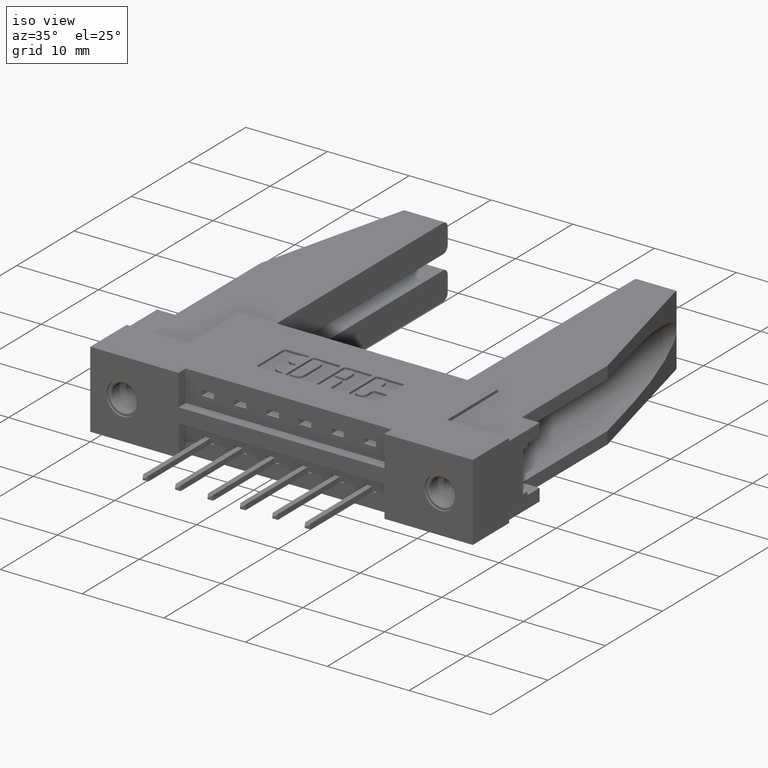
[diagram: clean part render]
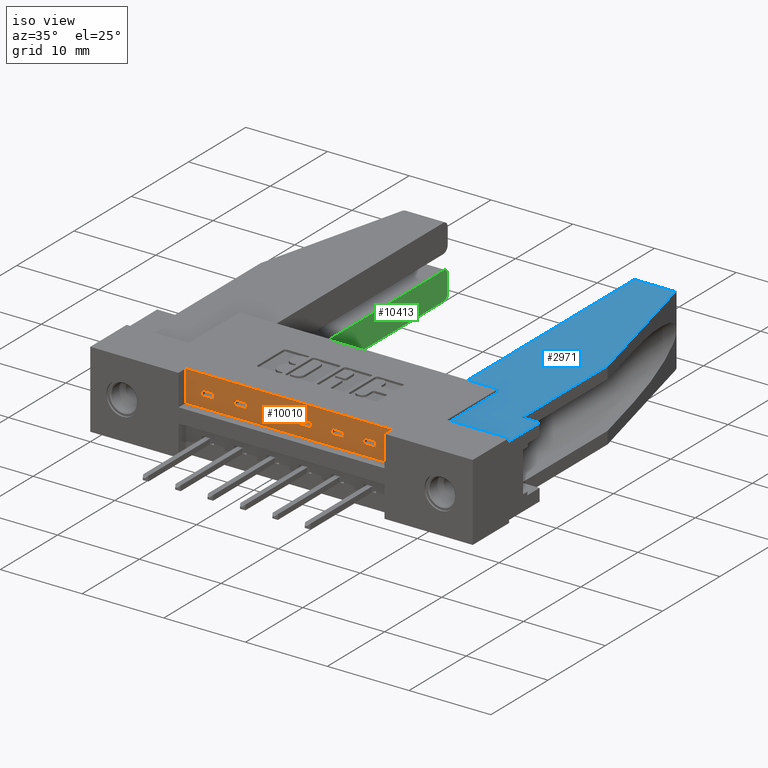
[diagram: same view with three faces highlighted in distinct colors, each labeled with its STEP entity id]
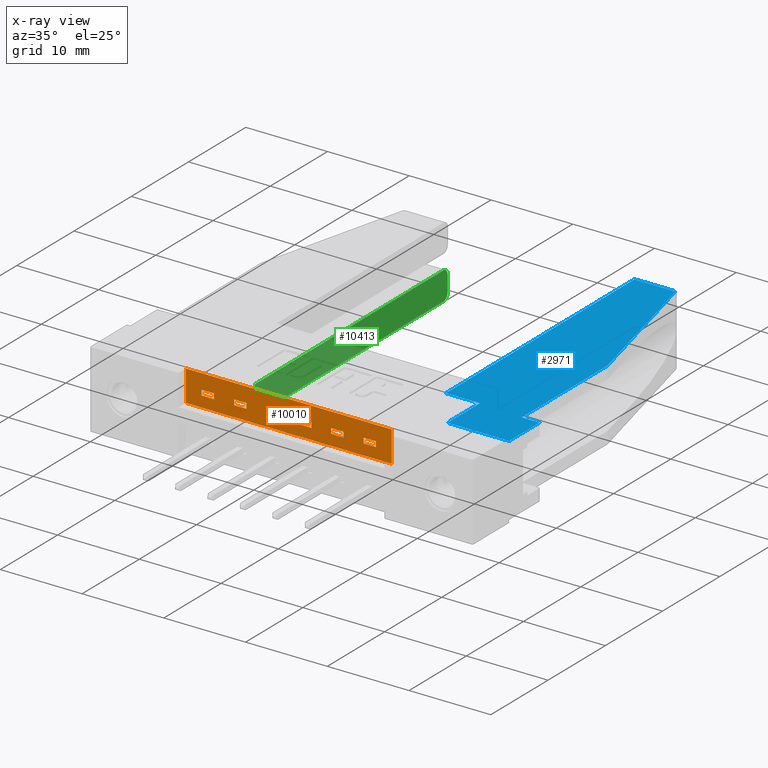
[diagram: x-ray of the same camera — body ghosted, the three highlighted faces saturated]
A machine part, iso view with three faces highlighted in distinct colors.
The next image is the same camera in x-ray (body ghosted, the three faces saturated) — at least one of them is partly hidden behind the body in this view.
Their STEP definitions:

[orange] entity #10010 — the highlighted planar face has unit normal (0, -1, 0).
#58 = ORIENTED_EDGE ( 'NONE', *, *, #4349, .T. ) ;
#124 = LINE ( 'NONE', #7377, #10205 ) ;
#145 = DIRECTION ( 'NONE',  ( -1.000000000000000000, 0.0000000000000000000, 0.0000000000000000000 ) ) ;
#151 = CARTESIAN_POINT ( 'NONE',  ( 0.4249999999999999300, 0.05000000000000000300, -0.07250000000000000900 ) ) ;
#184 = DIRECTION ( 'NONE',  ( -1.000000000000000000, 0.0000000000000000000, 0.0000000000000000000 ) ) ;
#191 = VECTOR ( 'NONE', #11483, 39.37007874015748100 ) ;
#219 = EDGE_LOOP ( 'NONE', ( #2002, #2456, #11079, #8866 ) ) ;
#271 = EDGE_LOOP ( 'NONE', ( #10287, #9530, #729, #498 ) ) ;
#435 = VECTOR ( 'NONE', #8499, 39.37007874015748100 ) ;
#453 = DIRECTION ( 'NONE',  ( 0.0000000000000000000, 0.0000000000000000000, 1.000000000000000000 ) ) ;
#465 = CARTESIAN_POINT ( 'NONE',  ( 0.5010000000000001100, 0.05000000000000001000, -0.09750000000000005900 ) ) ;
#470 = VERTEX_POINT ( 'NONE', #5057 ) ;
#492 = DIRECTION ( 'NONE',  ( 1.000000000000000000, 0.0000000000000000000, 0.0000000000000000000 ) ) ;
#498 = ORIENTED_EDGE ( 'NONE', *, *, #1820, .F. ) ;
#511 = LINE ( 'NONE', #11550, #11589 ) ;
#527 = CARTESIAN_POINT ( 'NONE',  ( 0.4249999999999999300, 0.05000000000000000300, -0.09750000000000003100 ) ) ;
#571 = CARTESIAN_POINT ( 'NONE',  ( 0.7170000000000000800, 0.05000000000000000300, -0.1499999999999999900 ) ) ;
#635 = VECTOR ( 'NONE', #11445, 39.37007874015748100 ) ;
#667 = LINE ( 'NONE', #1995, #9421 ) ;
#729 = ORIENTED_EDGE ( 'NONE', *, *, #4774, .F. ) ;
#755 = ORIENTED_EDGE ( 'NONE', *, *, #7112, .T. ) ;
#758 = LINE ( 'NONE', #2461, #1357 ) ;
#774 = CARTESIAN_POINT ( 'NONE',  ( 0.4249999999999999300, 0.05000000000000000300, 0.0000000000000000000 ) ) ;
#780 = VECTOR ( 'NONE', #1579, 39.37007874015748100 ) ;
#795 = DIRECTION ( 'NONE',  ( 0.0000000000000000000, -1.000000000000000000, 0.0000000000000000000 ) ) ;
#866 = VECTOR ( 'NONE', #492, 39.37007874015748100 ) ;
#887 = FACE_BOUND ( 'NONE', #6694, .T. ) ;
#1052 = CARTESIAN_POINT ( 'NONE',  ( 0.4249999999999999300, 0.05000000000000000300, -0.09750000000000000300 ) ) ;
#1153 = EDGE_CURVE ( 'NONE', #7883, #10263, #7895, .T. ) ;
#1234 = VECTOR ( 'NONE', #5779, 39.37007874015748100 ) ;
#1240 = VERTEX_POINT ( 'NONE', #6254 ) ;
#1244 = VERTEX_POINT ( 'NONE', #9842 ) ;
#1343 = CARTESIAN_POINT ( 'NONE',  ( 1.280999999999999700, 0.05000000000000001000, -0.09750000000000000300 ) ) ;
#1357 = VECTOR ( 'NONE', #2301, 39.37007874015748100 ) ;
#1517 = LINE ( 'NONE', #9678, #635 ) ;
#1579 = DIRECTION ( 'NONE',  ( -1.000000000000000000, 0.0000000000000000000, 0.0000000000000000000 ) ) ;
#1591 = CARTESIAN_POINT ( 'NONE',  ( 0.9689999999999998600, 0.05000000000000014800, -0.07250000000000000900 ) ) ;
#1596 = LINE ( 'NONE', #9512, #7354 ) ;
#1653 = CARTESIAN_POINT ( 'NONE',  ( 0.5610000000000000500, 0.05000000000000014800, -0.07250000000000005100 ) ) ;
#1670 = CARTESIAN_POINT ( 'NONE',  ( 0.9689999999999998600, 0.05000000000000000300, -0.1499999999999999900 ) ) ;
#1690 = CARTESIAN_POINT ( 'NONE',  ( 0.7170000000000000800, 0.05000000000000014800, -0.07250000000000003700 ) ) ;
#1786 = CARTESIAN_POINT ( 'NONE',  ( 0.8129999999999999400, 0.05000000000000000300, -0.1499999999999999900 ) ) ;
#1820 = EDGE_CURVE ( 'NONE', #2178, #9286, #6297, .T. ) ;
#1987 = LINE ( 'NONE', #5184, #10517 ) ;
#1995 = CARTESIAN_POINT ( 'NONE',  ( 0.5010000000000001100, 0.05000000000000000300, -0.1499999999999999900 ) ) ;
#2002 = ORIENTED_EDGE ( 'NONE', *, *, #2697, .F. ) ;
#2014 = EDGE_CURVE ( 'NONE', #1244, #7883, #9285, .T. ) ;
#2067 = VERTEX_POINT ( 'NONE', #1343 ) ;
#2124 = LINE ( 'NONE', #1670, #3664 ) ;
#2178 = VERTEX_POINT ( 'NONE', #7891 ) ;
#2251 = VECTOR ( 'NONE', #6069, 39.37007874015748100 ) ;
#2301 = DIRECTION ( 'NONE',  ( 0.0000000000000000000, 0.0000000000000000000, 1.000000000000000000 ) ) ;
#2329 = ORIENTED_EDGE ( 'NONE', *, *, #2991, .T. ) ;
#2400 = CARTESIAN_POINT ( 'NONE',  ( 0.4249999999999999300, 0.05000000000000000300, -0.1499999999999999900 ) ) ;
#2456 = ORIENTED_EDGE ( 'NONE', *, *, #3746, .T. ) ;
#2461 = CARTESIAN_POINT ( 'NONE',  ( 0.5610000000000000500, 0.05000000000000000300, -0.1499999999999999900 ) ) ;
#2468 = CARTESIAN_POINT ( 'NONE',  ( 0.4249999999999999300, 0.05000000000000000300, -0.1499999999999999900 ) ) ;
#2506 = EDGE_LOOP ( 'NONE', ( #2821, #5937, #5116, #7932 ) ) ;
#2542 = CARTESIAN_POINT ( 'NONE',  ( 1.185000000000000100, 0.05000000000000000300, -0.09750000000000000300 ) ) ;
#2580 = VERTEX_POINT ( 'NONE', #465 ) ;
#2697 = EDGE_CURVE ( 'NONE', #2067, #1244, #10083, .T. ) ;
#2787 = ORIENTED_EDGE ( 'NONE', *, *, #5526, .T. ) ;
#2821 = ORIENTED_EDGE ( 'NONE', *, *, #8651, .F. ) ;
#2844 = ORIENTED_EDGE ( 'NONE', *, *, #5284, .F. ) ;
#2860 = LINE ( 'NONE', #1786, #191 ) ;
#2869 = EDGE_CURVE ( 'NONE', #2580, #5152, #124, .T. ) ;
#2991 = EDGE_CURVE ( 'NONE', #7582, #4674, #1517, .T. ) ;
#3013 = VERTEX_POINT ( 'NONE', #8934 ) ;
#3026 = FACE_BOUND ( 'NONE', #219, .T. ) ;
#3071 = EDGE_CURVE ( 'NONE', #7638, #8501, #9787, .T. ) ;
#3095 = VECTOR ( 'NONE', #6566, 39.37007874015748100 ) ;
#3109 = VECTOR ( 'NONE', #10522, 39.37007874015748100 ) ;
#3290 = FACE_BOUND ( 'NONE', #11176, .T. ) ;
#3351 = CARTESIAN_POINT ( 'NONE',  ( 0.4249999999999999300, 0.05000000000000000300, -0.09750000000000003100 ) ) ;
#3352 = EDGE_CURVE ( 'NONE', #1240, #2178, #11179, .T. ) ;
#3366 = LINE ( 'NONE', #571, #2251 ) ;
#3469 = DIRECTION ( 'NONE',  ( -1.000000000000000000, -0.0000000000000000000, -0.0000000000000000000 ) ) ;
#3520 = EDGE_LOOP ( 'NONE', ( #9162, #5882, #2329, #2787 ) ) ;
#3664 = VECTOR ( 'NONE', #8194, 39.37007874015748100 ) ;
#3746 = EDGE_CURVE ( 'NONE', #2067, #10263, #1987, .T. ) ;
#3793 = DIRECTION ( 'NONE',  ( 0.0000000000000000000, 0.0000000000000000000, 1.000000000000000000 ) ) ;
#3879 = VECTOR ( 'NONE', #3469, 39.37007874015748100 ) ;
#3974 = VERTEX_POINT ( 'NONE', #6399 ) ;
#4126 = DIRECTION ( 'NONE',  ( 0.0000000000000000000, 0.0000000000000000000, 1.000000000000000000 ) ) ;
#4165 = CARTESIAN_POINT ( 'NONE',  ( 0.8129999999999999400, 0.05000000000000001000, -0.09750000000000003100 ) ) ;
#4179 = VECTOR ( 'NONE', #8324, 39.37007874015748100 ) ;
#4227 = LINE ( 'NONE', #9278, #435 ) ;
#4263 = DIRECTION ( 'NONE',  ( 0.0000000000000000000, -0.0000000000000000000, -1.000000000000000000 ) ) ;
#4349 = EDGE_CURVE ( 'NONE', #2580, #10015, #667, .T. ) ;
#4370 = LINE ( 'NONE', #151, #5188 ) ;
#4434 = VERTEX_POINT ( 'NONE', #2542 ) ;
#4510 = VERTEX_POINT ( 'NONE', #6319 ) ;
#4602 = CARTESIAN_POINT ( 'NONE',  ( 0.4249999999999999300, 0.05000000000000000300, -0.07250000000000005100 ) ) ;
#4674 = VERTEX_POINT ( 'NONE', #10707 ) ;
#4698 = CARTESIAN_POINT ( 'NONE',  ( 1.124999999999999800, 0.05000000000000000300, -0.1499999999999999900 ) ) ;
#4730 = CARTESIAN_POINT ( 'NONE',  ( 0.4249999999999999300, 0.05000000000000000300, -0.09750000000000000300 ) ) ;
#4733 = VERTEX_POINT ( 'NONE', #1653 ) ;
#4750 = EDGE_CURVE ( 'NONE', #3013, #7582, #8834, .T. ) ;
#4774 = EDGE_CURVE ( 'NONE', #9286, #8225, #511, .T. ) ;
#4862 = LINE ( 'NONE', #4698, #4179 ) ;
#4903 = EDGE_CURVE ( 'NONE', #4510, #470, #4862, .T. ) ;
#4982 = VECTOR ( 'NONE', #145, 39.37007874015748100 ) ;
#5057 = CARTESIAN_POINT ( 'NONE',  ( 1.124999999999999800, 0.05000000000000014800, -0.07250000000000000900 ) ) ;
#5064 = EDGE_CURVE ( 'NONE', #4510, #4434, #10324, .T. ) ;
#5090 = FACE_OUTER_BOUND ( 'NONE', #3520, .T. ) ;
#5116 = ORIENTED_EDGE ( 'NONE', *, *, #3071, .F. ) ;
#5152 = VERTEX_POINT ( 'NONE', #6687 ) ;
#5159 = DIRECTION ( 'NONE',  ( -1.000000000000000000, 0.0000000000000000000, 0.0000000000000000000 ) ) ;
#5176 = LINE ( 'NONE', #11362, #6023 ) ;
#5184 = CARTESIAN_POINT ( 'NONE',  ( 1.280999999999999700, 0.05000000000000000300, -0.1499999999999999900 ) ) ;
#5188 = VECTOR ( 'NONE', #184, 39.37007874015748100 ) ;
#5222 = VERTEX_POINT ( 'NONE', #9583 ) ;
#5284 = EDGE_CURVE ( 'NONE', #4733, #10015, #9932, .T. ) ;
#5474 = ORIENTED_EDGE ( 'NONE', *, *, #5064, .F. ) ;
#5526 = EDGE_CURVE ( 'NONE', #4674, #7154, #8517, .T. ) ;
#5667 = CARTESIAN_POINT ( 'NONE',  ( 1.340999999999999700, 0.05000000000000000300, -0.1499999999999999900 ) ) ;
#5779 = DIRECTION ( 'NONE',  ( 1.000000000000000000, 0.0000000000000000000, 0.0000000000000000000 ) ) ;
#5851 = ORIENTED_EDGE ( 'NONE', *, *, #9887, .F. ) ;
#5882 = ORIENTED_EDGE ( 'NONE', *, *, #4750, .T. ) ;
#5937 = ORIENTED_EDGE ( 'NONE', *, *, #11017, .T. ) ;
#5960 = EDGE_CURVE ( 'NONE', #5152, #4733, #758, .T. ) ;
#5990 = CARTESIAN_POINT ( 'NONE',  ( 0.4249999999999999300, 0.05000000000000000300, -0.07249999999999998100 ) ) ;
#6023 = VECTOR ( 'NONE', #4126, 39.37007874015748100 ) ;
#6069 = DIRECTION ( 'NONE',  ( 0.0000000000000000000, 0.0000000000000000000, 1.000000000000000000 ) ) ;
#6145 = DIRECTION ( 'NONE',  ( 0.0000000000000000000, 0.0000000000000000000, 1.000000000000000000 ) ) ;
#6156 = VECTOR ( 'NONE', #7370, 39.37007874015748100 ) ;
#6196 = LINE ( 'NONE', #527, #866 ) ;
#6200 = CARTESIAN_POINT ( 'NONE',  ( 0.4249999999999999300, 0.05000000000000000300, 0.0000000000000000000 ) ) ;
#6254 = CARTESIAN_POINT ( 'NONE',  ( 0.9689999999999998600, 0.05000000000000001000, -0.09750000000000001700 ) ) ;
#6285 = CARTESIAN_POINT ( 'NONE',  ( 1.028999999999999900, 0.05000000000000014800, -0.07250000000000000900 ) ) ;
#6297 = LINE ( 'NONE', #11068, #6156 ) ;
#6319 = CARTESIAN_POINT ( 'NONE',  ( 1.124999999999999800, 0.05000000000000001000, -0.09750000000000000300 ) ) ;
#6334 = VECTOR ( 'NONE', #6145, 39.37007874015748100 ) ;
#6399 = CARTESIAN_POINT ( 'NONE',  ( 0.7170000000000000800, 0.05000000000000000300, -0.09750000000000003100 ) ) ;
#6566 = DIRECTION ( 'NONE',  ( 0.0000000000000000000, 0.0000000000000000000, 1.000000000000000000 ) ) ;
#6687 = CARTESIAN_POINT ( 'NONE',  ( 0.5610000000000000500, 0.05000000000000000300, -0.09750000000000005900 ) ) ;
#6694 = EDGE_LOOP ( 'NONE', ( #5474, #9086, #10204, #10299 ) ) ;
#6974 = VECTOR ( 'NONE', #8285, 39.37007874015748100 ) ;
#6978 = VECTOR ( 'NONE', #9588, 39.37007874015748100 ) ;
#7112 = EDGE_CURVE ( 'NONE', #8979, #8491, #2860, .T. ) ;
#7134 = CARTESIAN_POINT ( 'NONE',  ( 1.417000000000000700, 0.05000000000000000300, -0.1499999999999999900 ) ) ;
#7154 = VERTEX_POINT ( 'NONE', #774 ) ;
#7158 = AXIS2_PLACEMENT_3D ( 'NONE', #2468, #795, #4263 ) ;
#7260 = EDGE_CURVE ( 'NONE', #9940, #470, #1596, .T. ) ;
#7311 = EDGE_CURVE ( 'NONE', #8979, #10429, #6196, .T. ) ;
#7354 = VECTOR ( 'NONE', #9478, 39.37007874015748100 ) ;
#7370 = DIRECTION ( 'NONE',  ( 0.0000000000000000000, 0.0000000000000000000, 1.000000000000000000 ) ) ;
#7377 = CARTESIAN_POINT ( 'NONE',  ( 0.4249999999999999300, 0.05000000000000000300, -0.09750000000000005900 ) ) ;
#7551 = VERTEX_POINT ( 'NONE', #9763 ) ;
#7582 = VERTEX_POINT ( 'NONE', #7134 ) ;
#7638 = VERTEX_POINT ( 'NONE', #1690 ) ;
#7787 = VECTOR ( 'NONE', #453, 39.37007874015748100 ) ;
#7824 = ORIENTED_EDGE ( 'NONE', *, *, #7311, .F. ) ;
#7883 = VERTEX_POINT ( 'NONE', #8212 ) ;
#7886 = LINE ( 'NONE', #3351, #3109 ) ;
#7891 = CARTESIAN_POINT ( 'NONE',  ( 1.028999999999999900, 0.05000000000000000300, -0.09750000000000001700 ) ) ;
#7895 = LINE ( 'NONE', #5990, #8305 ) ;
#7932 = ORIENTED_EDGE ( 'NONE', *, *, #9011, .F. ) ;
#7965 = CARTESIAN_POINT ( 'NONE',  ( 1.280999999999999700, 0.05000000000000014800, -0.07249999999999998100 ) ) ;
#7989 = CARTESIAN_POINT ( 'NONE',  ( 0.6570000000000000300, 0.05000000000000014800, -0.07250000000000003700 ) ) ;
#8067 = EDGE_CURVE ( 'NONE', #7551, #8491, #4370, .T. ) ;
#8075 = FACE_BOUND ( 'NONE', #8939, .T. ) ;
#8194 = DIRECTION ( 'NONE',  ( 0.0000000000000000000, 0.0000000000000000000, 1.000000000000000000 ) ) ;
#8212 = CARTESIAN_POINT ( 'NONE',  ( 1.340999999999999700, 0.05000000000000014800, -0.07249999999999998100 ) ) ;
#8216 = FACE_BOUND ( 'NONE', #2506, .T. ) ;
#8225 = VERTEX_POINT ( 'NONE', #1591 ) ;
#8264 = EDGE_CURVE ( 'NONE', #7154, #3013, #4227, .T. ) ;
#8285 = DIRECTION ( 'NONE',  ( 1.000000000000000000, 0.0000000000000000000, 0.0000000000000000000 ) ) ;
#8305 = VECTOR ( 'NONE', #5159, 39.37007874015748100 ) ;
#8324 = DIRECTION ( 'NONE',  ( 0.0000000000000000000, 0.0000000000000000000, 1.000000000000000000 ) ) ;
#8491 = VERTEX_POINT ( 'NONE', #10698 ) ;
#8499 = DIRECTION ( 'NONE',  ( 0.0000000000000000000, 0.0000000000000000000, -1.000000000000000000 ) ) ;
#8501 = VERTEX_POINT ( 'NONE', #7989 ) ;
#8517 = LINE ( 'NONE', #6200, #3879 ) ;
#8553 = CARTESIAN_POINT ( 'NONE',  ( 0.4249999999999999300, 0.05000000000000000300, -0.07250000000000005100 ) ) ;
#8651 = EDGE_CURVE ( 'NONE', #5222, #3974, #7886, .T. ) ;
#8718 = CARTESIAN_POINT ( 'NONE',  ( 0.8730000000000000000, 0.05000000000000000300, -0.1499999999999999900 ) ) ;
#8751 = EDGE_CURVE ( 'NONE', #1240, #8225, #2124, .T. ) ;
#8834 = LINE ( 'NONE', #2400, #6978 ) ;
#8835 = PLANE ( 'NONE',  #7158 ) ;
#8866 = ORIENTED_EDGE ( 'NONE', *, *, #2014, .F. ) ;
#8889 = DIRECTION ( 'NONE',  ( -1.000000000000000000, 0.0000000000000000000, 0.0000000000000000000 ) ) ;
#8916 = ORIENTED_EDGE ( 'NONE', *, *, #5960, .F. ) ;
#8934 = CARTESIAN_POINT ( 'NONE',  ( 0.4249999999999999300, 0.05000000000000000300, -0.1499999999999999900 ) ) ;
#8939 = EDGE_LOOP ( 'NONE', ( #10802, #58, #2844, #8916 ) ) ;
#8979 = VERTEX_POINT ( 'NONE', #4165 ) ;
#9001 = EDGE_CURVE ( 'NONE', #4434, #9940, #5176, .T. ) ;
#9011 = EDGE_CURVE ( 'NONE', #3974, #7638, #3366, .T. ) ;
#9086 = ORIENTED_EDGE ( 'NONE', *, *, #4903, .T. ) ;
#9162 = ORIENTED_EDGE ( 'NONE', *, *, #8264, .T. ) ;
#9211 = CARTESIAN_POINT ( 'NONE',  ( 0.8730000000000000000, 0.05000000000000000300, -0.09750000000000003100 ) ) ;
#9278 = CARTESIAN_POINT ( 'NONE',  ( 0.4249999999999999300, 0.05000000000000000300, 0.0000000000000000000 ) ) ;
#9285 = LINE ( 'NONE', #5667, #3095 ) ;
#9286 = VERTEX_POINT ( 'NONE', #6285 ) ;
#9421 = VECTOR ( 'NONE', #3793, 39.37007874015748100 ) ;
#9460 = DIRECTION ( 'NONE',  ( 1.000000000000000000, 0.0000000000000000000, 0.0000000000000000000 ) ) ;
#9470 = CARTESIAN_POINT ( 'NONE',  ( 0.5010000000000001100, 0.05000000000000014800, -0.07250000000000005100 ) ) ;
#9478 = DIRECTION ( 'NONE',  ( -1.000000000000000000, 0.0000000000000000000, 0.0000000000000000000 ) ) ;
#9512 = CARTESIAN_POINT ( 'NONE',  ( 0.4249999999999999300, 0.05000000000000000300, -0.07250000000000000900 ) ) ;
#9530 = ORIENTED_EDGE ( 'NONE', *, *, #8751, .T. ) ;
#9583 = CARTESIAN_POINT ( 'NONE',  ( 0.6570000000000000300, 0.05000000000000001000, -0.09750000000000003100 ) ) ;
#9588 = DIRECTION ( 'NONE',  ( 1.000000000000000000, 0.0000000000000000000, 0.0000000000000000000 ) ) ;
#9614 = LINE ( 'NONE', #8718, #7787 ) ;
#9678 = CARTESIAN_POINT ( 'NONE',  ( 1.417000000000000700, 0.05000000000000000300, 0.0000000000000000000 ) ) ;
#9763 = CARTESIAN_POINT ( 'NONE',  ( 0.8730000000000000000, 0.05000000000000014800, -0.07250000000000002300 ) ) ;
#9787 = LINE ( 'NONE', #4602, #4982 ) ;
#9842 = CARTESIAN_POINT ( 'NONE',  ( 1.340999999999999700, 0.05000000000000000300, -0.09750000000000000300 ) ) ;
#9887 = EDGE_CURVE ( 'NONE', #10429, #7551, #9614, .T. ) ;
#9932 = LINE ( 'NONE', #8553, #780 ) ;
#9940 = VERTEX_POINT ( 'NONE', #10446 ) ;
#10010 = ADVANCED_FACE ( 'NONE', ( #5090, #8075, #8216, #3290, #10156, #887, #3026 ), #8835, .T. ) ;
#10015 = VERTEX_POINT ( 'NONE', #9470 ) ;
#10083 = LINE ( 'NONE', #1052, #6974 ) ;
#10156 = FACE_BOUND ( 'NONE', #271, .T. ) ;
#10204 = ORIENTED_EDGE ( 'NONE', *, *, #7260, .F. ) ;
#10205 = VECTOR ( 'NONE', #9460, 39.37007874015748100 ) ;
#10263 = VERTEX_POINT ( 'NONE', #7965 ) ;
#10287 = ORIENTED_EDGE ( 'NONE', *, *, #3352, .F. ) ;
#10299 = ORIENTED_EDGE ( 'NONE', *, *, #9001, .F. ) ;
#10324 = LINE ( 'NONE', #4730, #1234 ) ;
#10429 = VERTEX_POINT ( 'NONE', #9211 ) ;
#10446 = CARTESIAN_POINT ( 'NONE',  ( 1.184999999999999800, 0.05000000000000014800, -0.07250000000000000900 ) ) ;
#10465 = CARTESIAN_POINT ( 'NONE',  ( 0.4249999999999999300, 0.05000000000000000300, -0.09750000000000001700 ) ) ;
#10517 = VECTOR ( 'NONE', #11455, 39.37007874015748100 ) ;
#10522 = DIRECTION ( 'NONE',  ( 1.000000000000000000, 0.0000000000000000000, 0.0000000000000000000 ) ) ;
#10552 = LINE ( 'NONE', #10668, #6334 ) ;
#10668 = CARTESIAN_POINT ( 'NONE',  ( 0.6570000000000000300, 0.05000000000000000300, -0.1499999999999999900 ) ) ;
#10698 = CARTESIAN_POINT ( 'NONE',  ( 0.8129999999999999400, 0.05000000000000014800, -0.07250000000000002300 ) ) ;
#10707 = CARTESIAN_POINT ( 'NONE',  ( 1.417000000000000700, 0.05000000000000000300, 0.0000000000000000000 ) ) ;
#10802 = ORIENTED_EDGE ( 'NONE', *, *, #2869, .F. ) ;
#11017 = EDGE_CURVE ( 'NONE', #5222, #8501, #10552, .T. ) ;
#11068 = CARTESIAN_POINT ( 'NONE',  ( 1.028999999999999900, 0.05000000000000000300, -0.1499999999999999900 ) ) ;
#11079 = ORIENTED_EDGE ( 'NONE', *, *, #1153, .F. ) ;
#11176 = EDGE_LOOP ( 'NONE', ( #7824, #755, #11345, #5851 ) ) ;
#11179 = LINE ( 'NONE', #10465, #11327 ) ;
#11327 = VECTOR ( 'NONE', #11361, 39.37007874015748100 ) ;
#11345 = ORIENTED_EDGE ( 'NONE', *, *, #8067, .F. ) ;
#11361 = DIRECTION ( 'NONE',  ( 1.000000000000000000, 0.0000000000000000000, 0.0000000000000000000 ) ) ;
#11362 = CARTESIAN_POINT ( 'NONE',  ( 1.185000000000000100, 0.05000000000000000300, -0.1499999999999999900 ) ) ;
#11445 = DIRECTION ( 'NONE',  ( -0.0000000000000000000, -0.0000000000000000000, 1.000000000000000000 ) ) ;
#11455 = DIRECTION ( 'NONE',  ( 0.0000000000000000000, 0.0000000000000000000, 1.000000000000000000 ) ) ;
#11483 = DIRECTION ( 'NONE',  ( 0.0000000000000000000, 0.0000000000000000000, 1.000000000000000000 ) ) ;
#11550 = CARTESIAN_POINT ( 'NONE',  ( 0.4249999999999999300, 0.05000000000000000300, -0.07250000000000000900 ) ) ;
#11589 = VECTOR ( 'NONE', #8889, 39.37007874015748100 ) ;

[blue] entity #2971 — the highlighted planar face has unit normal (0, 0, -1).
#41 = EDGE_CURVE ( 'NONE', #1779, #1686, #9730, .T. ) ;
#55 = CARTESIAN_POINT ( 'NONE',  ( 5.427945026982818800E-017, 0.2099999999999999400, -0.3430000000000000300 ) ) ;
#82 = ORIENTED_EDGE ( 'NONE', *, *, #8560, .F. ) ;
#84 = VERTEX_POINT ( 'NONE', #967 ) ;
#94 = VERTEX_POINT ( 'NONE', #1092 ) ;
#128 = LINE ( 'NONE', #5601, #258 ) ;
#233 = ORIENTED_EDGE ( 'NONE', *, *, #11311, .F. ) ;
#258 = VECTOR ( 'NONE', #1906, 39.37007874015748100 ) ;
#267 = ORIENTED_EDGE ( 'NONE', *, *, #4182, .F. ) ;
#309 = VECTOR ( 'NONE', #7029, 39.37007874015748100 ) ;
#636 = VERTEX_POINT ( 'NONE', #3630 ) ;
#673 = DIRECTION ( 'NONE',  ( -1.000000000000000000, -0.0000000000000000000, -0.0000000000000000000 ) ) ;
#967 = CARTESIAN_POINT ( 'NONE',  ( 0.2636000000000000600, 1.520000000000000200, -0.3430000000000000300 ) ) ;
#982 = CARTESIAN_POINT ( 'NONE',  ( 0.2710000000000000200, 1.550000000000000000, -0.3430000000000000300 ) ) ;
#989 = VECTOR ( 'NONE', #1783, 39.37007874015748900 ) ;
#1092 = CARTESIAN_POINT ( 'NONE',  ( 0.08600000000000011800, 0.2099999999999999400, -0.3430000000000000300 ) ) ;
#1256 = LINE ( 'NONE', #3888, #2519 ) ;
#1489 = VERTEX_POINT ( 'NONE', #3949 ) ;
#1546 = CARTESIAN_POINT ( 'NONE',  ( 0.08600000000000013200, 0.8000000000000000400, -0.3430000000000000300 ) ) ;
#1686 = VERTEX_POINT ( 'NONE', #8162 ) ;
#1779 = VERTEX_POINT ( 'NONE', #10806 ) ;
#1783 = DIRECTION ( 'NONE',  ( -0.2394884713086026000, -0.9708992080078490100, 0.0000000000000000000 ) ) ;
#1906 = DIRECTION ( 'NONE',  ( 0.0000000000000000000, 1.000000000000000000, 0.0000000000000000000 ) ) ;
#2365 = VERTEX_POINT ( 'NONE', #55 ) ;
#2380 = LINE ( 'NONE', #7274, #7152 ) ;
#2459 = EDGE_CURVE ( 'NONE', #84, #1489, #1256, .T. ) ;
#2519 = VECTOR ( 'NONE', #3933, 39.37007874015748100 ) ;
#2714 = LINE ( 'NONE', #5186, #8065 ) ;
#2971 = ADVANCED_FACE ( 'NONE', ( #5839 ), #6947, .F. ) ;
#3630 = CARTESIAN_POINT ( 'NONE',  ( 0.08600000000000013200, 0.8000000000000000400, -0.3430000000000000300 ) ) ;
#3888 = CARTESIAN_POINT ( 'NONE',  ( 0.4610000000000000800, 1.520000000000000200, -0.3430000000000000300 ) ) ;
#3933 = DIRECTION ( 'NONE',  ( 1.000000000000000000, -0.0000000000000000000, -0.0000000000000000000 ) ) ;
#3949 = CARTESIAN_POINT ( 'NONE',  ( 0.4610000000000000800, 1.519999999999999600, -0.3430000000000000300 ) ) ;
#4017 = ORIENTED_EDGE ( 'NONE', *, *, #10201, .F. ) ;
#4141 = VERTEX_POINT ( 'NONE', #5956 ) ;
#4182 = EDGE_CURVE ( 'NONE', #2365, #1779, #2380, .T. ) ;
#4241 = EDGE_LOOP ( 'NONE', ( #82, #5355, #233, #11340, #8168, #4544, #267, #4017, #6169 ) ) ;
#4372 = DIRECTION ( 'NONE',  ( 1.000000000000000000, 0.0000000000000000000, 0.0000000000000000000 ) ) ;
#4544 = ORIENTED_EDGE ( 'NONE', *, *, #41, .F. ) ;
#4659 = LINE ( 'NONE', #1546, #10259 ) ;
#4687 = LINE ( 'NONE', #5655, #6933 ) ;
#4916 = EDGE_CURVE ( 'NONE', #1686, #6269, #128, .T. ) ;
#5186 = CARTESIAN_POINT ( 'NONE',  ( 5.427945026982818800E-017, 0.2099999999999999400, -0.3430000000000000300 ) ) ;
#5355 = ORIENTED_EDGE ( 'NONE', *, *, #2459, .T. ) ;
#5383 = DIRECTION ( 'NONE',  ( 1.000000000000000000, 0.0000000000000000000, 0.0000000000000000000 ) ) ;
#5601 = CARTESIAN_POINT ( 'NONE',  ( 0.2969999999999999900, 0.0000000000000000000, -0.3430000000000000300 ) ) ;
#5655 = CARTESIAN_POINT ( 'NONE',  ( 0.2969999999999999900, 0.2230000000000000300, -0.3430000000000000300 ) ) ;
#5839 = FACE_OUTER_BOUND ( 'NONE', #4241, .T. ) ;
#5956 = CARTESIAN_POINT ( 'NONE',  ( 0.4610000000000000200, 0.2230000000000000300, -0.3430000000000000300 ) ) ;
#6169 = ORIENTED_EDGE ( 'NONE', *, *, #7500, .F. ) ;
#6269 = VERTEX_POINT ( 'NONE', #7884 ) ;
#6485 = AXIS2_PLACEMENT_3D ( 'NONE', #9747, #7953, #4372 ) ;
#6933 = VECTOR ( 'NONE', #8236, 39.37007874015748100 ) ;
#6947 = PLANE ( 'NONE',  #6485 ) ;
#7006 = DIRECTION ( 'NONE',  ( -2.893906772949430800E-017, -1.000000000000000000, 0.0000000000000000000 ) ) ;
#7029 = DIRECTION ( 'NONE',  ( 5.146661630867112300E-017, 1.000000000000000000, 0.0000000000000000000 ) ) ;
#7152 = VECTOR ( 'NONE', #9977, 39.37007874015748100 ) ;
#7274 = CARTESIAN_POINT ( 'NONE',  ( 5.427945026982818800E-017, 0.2099999999999999400, -0.3430000000000000300 ) ) ;
#7490 = VECTOR ( 'NONE', #5383, 39.37007874015748100 ) ;
#7500 = EDGE_CURVE ( 'NONE', #636, #94, #4659, .T. ) ;
#7884 = CARTESIAN_POINT ( 'NONE',  ( 0.2969999999999999900, 0.2230000000000000300, -0.3430000000000000300 ) ) ;
#7953 = DIRECTION ( 'NONE',  ( -0.0000000000000000000, 0.0000000000000000000, 1.000000000000000000 ) ) ;
#8065 = VECTOR ( 'NONE', #673, 39.37007874015748100 ) ;
#8162 = CARTESIAN_POINT ( 'NONE',  ( 0.2969999999999999900, 0.0000000000000000000, -0.3430000000000000300 ) ) ;
#8168 = ORIENTED_EDGE ( 'NONE', *, *, #4916, .F. ) ;
#8236 = DIRECTION ( 'NONE',  ( 1.000000000000000000, 0.0000000000000000000, 0.0000000000000000000 ) ) ;
#8445 = LINE ( 'NONE', #982, #989 ) ;
#8560 = EDGE_CURVE ( 'NONE', #84, #636, #8445, .T. ) ;
#9503 = EDGE_CURVE ( 'NONE', #6269, #4141, #4687, .T. ) ;
#9713 = LINE ( 'NONE', #11559, #309 ) ;
#9730 = LINE ( 'NONE', #11577, #7490 ) ;
#9747 = CARTESIAN_POINT ( 'NONE',  ( -7.582401355855259500E-033, 0.0000000000000000000, -0.3430000000000000300 ) ) ;
#9977 = DIRECTION ( 'NONE',  ( -2.584735727134676700E-016, -1.000000000000000000, 0.0000000000000000000 ) ) ;
#10201 = EDGE_CURVE ( 'NONE', #94, #2365, #2714, .T. ) ;
#10259 = VECTOR ( 'NONE', #7006, 39.37007874015748100 ) ;
#10806 = CARTESIAN_POINT ( 'NONE',  ( 0.0000000000000000000, 0.0000000000000000000, -0.3430000000000000300 ) ) ;
#11311 = EDGE_CURVE ( 'NONE', #4141, #1489, #9713, .T. ) ;
#11340 = ORIENTED_EDGE ( 'NONE', *, *, #9503, .F. ) ;
#11559 = CARTESIAN_POINT ( 'NONE',  ( 0.4610000000000000200, 0.2230000000000000300, -0.3430000000000000300 ) ) ;
#11577 = CARTESIAN_POINT ( 'NONE',  ( 0.0000000000000000000, 0.0000000000000000000, -0.3430000000000000300 ) ) ;

[green] entity #10413 — the highlighted planar face has unit normal (1, -0, 0).
#197 = VERTEX_POINT ( 'NONE', #9166 ) ;
#309 = VECTOR ( 'NONE', #7029, 39.37007874015748100 ) ;
#356 = VERTEX_POINT ( 'NONE', #6558 ) ;
#584 = LINE ( 'NONE', #3399, #6777 ) ;
#1075 = EDGE_CURVE ( 'NONE', #356, #11313, #4368, .T. ) ;
#1216 = PLANE ( 'NONE',  #10531 ) ;
#1305 = VERTEX_POINT ( 'NONE', #6298 ) ;
#1484 = ORIENTED_EDGE ( 'NONE', *, *, #8620, .T. ) ;
#1489 = VERTEX_POINT ( 'NONE', #3949 ) ;
#2337 = CARTESIAN_POINT ( 'NONE',  ( 0.4610000000000000800, 1.520000000000000200, -0.2369999999999999900 ) ) ;
#2505 = DIRECTION ( 'NONE',  ( 0.0000000000000000000, 1.000000000000000000, 0.0000000000000000000 ) ) ;
#2903 = EDGE_CURVE ( 'NONE', #1305, #197, #11595, .T. ) ;
#2999 = CARTESIAN_POINT ( 'NONE',  ( 0.4610000000000000200, 0.2230000000000000300, -0.3430000000000000300 ) ) ;
#3057 = DIRECTION ( 'NONE',  ( 5.146661630867112300E-017, 1.000000000000000000, 1.029332326173422500E-016 ) ) ;
#3242 = DIRECTION ( 'NONE',  ( 0.0000000000000000000, 1.000000000000000000, 0.0000000000000000000 ) ) ;
#3399 = CARTESIAN_POINT ( 'NONE',  ( 0.4610000000000000200, 0.2230000000000000300, -0.3430000000000000300 ) ) ;
#3949 = CARTESIAN_POINT ( 'NONE',  ( 0.4610000000000000800, 1.519999999999999600, -0.3430000000000000300 ) ) ;
#4141 = VERTEX_POINT ( 'NONE', #5956 ) ;
#4204 = CARTESIAN_POINT ( 'NONE',  ( 0.4610000000000000800, 1.550000000000000000, -0.3430000000000000300 ) ) ;
#4346 = ORIENTED_EDGE ( 'NONE', *, *, #6653, .F. ) ;
#4368 = LINE ( 'NONE', #4204, #10957 ) ;
#4968 = DIRECTION ( 'NONE',  ( 1.000000000000000000, -5.146661630867112300E-017, 0.0000000000000000000 ) ) ;
#5156 = ORIENTED_EDGE ( 'NONE', *, *, #1075, .T. ) ;
#5316 = CIRCLE ( 'NONE', #6606, 0.02999999999999995400 ) ;
#5659 = CARTESIAN_POINT ( 'NONE',  ( 0.4610000000000000200, 0.2230000000000000300, -0.2070000000000001300 ) ) ;
#5857 = ORIENTED_EDGE ( 'NONE', *, *, #11311, .T. ) ;
#5956 = CARTESIAN_POINT ( 'NONE',  ( 0.4610000000000000200, 0.2230000000000000300, -0.3430000000000000300 ) ) ;
#6086 = DIRECTION ( 'NONE',  ( 1.000000000000000000, -5.146661630867112300E-017, 0.0000000000000000000 ) ) ;
#6199 = CARTESIAN_POINT ( 'NONE',  ( 0.4610000000000000800, 1.550000000000000000, -0.2369999999999999900 ) ) ;
#6298 = CARTESIAN_POINT ( 'NONE',  ( 0.4610000000000000200, 0.2230000000000000300, -0.2070000000000001300 ) ) ;
#6304 = EDGE_CURVE ( 'NONE', #1489, #356, #11412, .T. ) ;
#6420 = DIRECTION ( 'NONE',  ( 5.146661630867112300E-017, 1.000000000000000000, 0.0000000000000000000 ) ) ;
#6558 = CARTESIAN_POINT ( 'NONE',  ( 0.4610000000000000800, 1.550000000000000000, -0.3130000000000000000 ) ) ;
#6606 = AXIS2_PLACEMENT_3D ( 'NONE', #2337, #4968, #3242 ) ;
#6653 = EDGE_CURVE ( 'NONE', #4141, #1305, #584, .T. ) ;
#6777 = VECTOR ( 'NONE', #8882, 39.37007874015748100 ) ;
#7029 = DIRECTION ( 'NONE',  ( 5.146661630867112300E-017, 1.000000000000000000, 0.0000000000000000000 ) ) ;
#7349 = DIRECTION ( 'NONE',  ( 1.000000000000000000, -5.146661630867112300E-017, 0.0000000000000000000 ) ) ;
#8620 = EDGE_CURVE ( 'NONE', #11313, #197, #5316, .T. ) ;
#8882 = DIRECTION ( 'NONE',  ( 0.0000000000000000000, 0.0000000000000000000, 1.000000000000000000 ) ) ;
#9059 = FACE_OUTER_BOUND ( 'NONE', #10306, .T. ) ;
#9166 = CARTESIAN_POINT ( 'NONE',  ( 0.4610000000000000800, 1.519999999999999600, -0.2070000000000000200 ) ) ;
#9275 = VECTOR ( 'NONE', #3057, 39.37007874015748100 ) ;
#9713 = LINE ( 'NONE', #11559, #309 ) ;
#9719 = CARTESIAN_POINT ( 'NONE',  ( 0.4610000000000000800, 1.520000000000000200, -0.3130000000000000000 ) ) ;
#10051 = ORIENTED_EDGE ( 'NONE', *, *, #2903, .F. ) ;
#10306 = EDGE_LOOP ( 'NONE', ( #5857, #10492, #5156, #1484, #10051, #4346 ) ) ;
#10413 = ADVANCED_FACE ( 'NONE', ( #9059 ), #1216, .T. ) ;
#10492 = ORIENTED_EDGE ( 'NONE', *, *, #6304, .T. ) ;
#10531 = AXIS2_PLACEMENT_3D ( 'NONE', #2999, #7349, #6420 ) ;
#10815 = AXIS2_PLACEMENT_3D ( 'NONE', #9719, #6086, #2505 ) ;
#10957 = VECTOR ( 'NONE', #11321, 39.37007874015748100 ) ;
#11311 = EDGE_CURVE ( 'NONE', #4141, #1489, #9713, .T. ) ;
#11313 = VERTEX_POINT ( 'NONE', #6199 ) ;
#11321 = DIRECTION ( 'NONE',  ( 0.0000000000000000000, 0.0000000000000000000, 1.000000000000000000 ) ) ;
#11412 = CIRCLE ( 'NONE', #10815, 0.02999999999999995400 ) ;
#11559 = CARTESIAN_POINT ( 'NONE',  ( 0.4610000000000000200, 0.2230000000000000300, -0.3430000000000000300 ) ) ;
#11595 = LINE ( 'NONE', #5659, #9275 ) ;